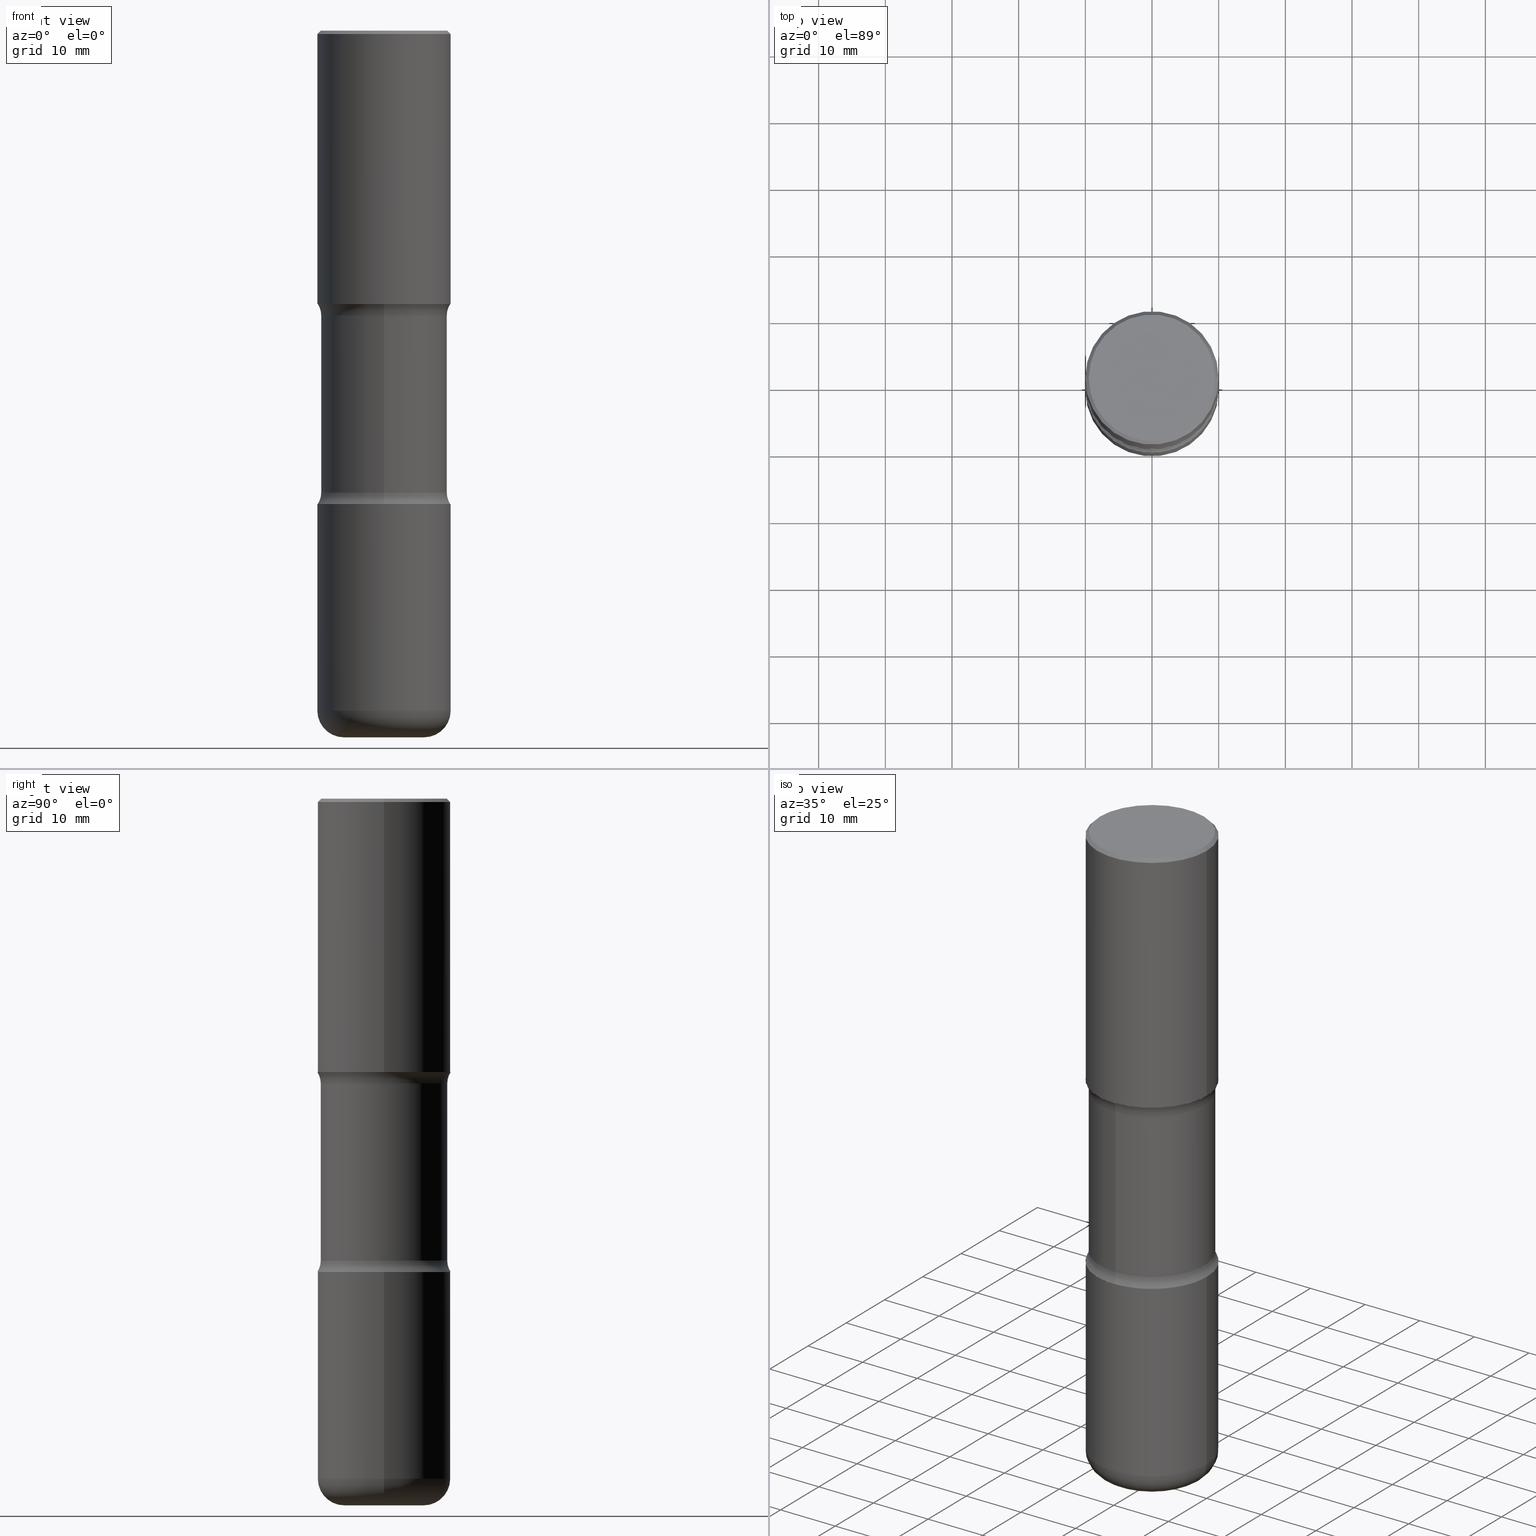
[diagram: canonical four-view strip — front | top / right | iso, engineering-drawing reading convention]
A machine part, canonical four-view strip (front | top / right | iso — engineering-drawing reading convention). The complete STEP part file that produces these views, byte-faithful:
ISO-10303-21;
HEADER;
FILE_DESCRIPTION (( 'STEP AP203' ),
    '1' );
FILE_NAME ('44996.STEP',
    '2024-03-02T04:27:52',
    ( '' ),
    ( '' ),
    'SwSTEP 2.0',
    'SolidWorks 2023',
    '' );
FILE_SCHEMA (( 'CONFIG_CONTROL_DESIGN' ));
ENDSEC;

DATA;
#1 = PRODUCT ( '44996', '44996', '', ( #303 ) ) ;
#2 = EDGE_CURVE ( 'NONE', #428, #338, #4, .T. ) ;
#3 = FACE_OUTER_BOUND ( 'NONE', #139, .T. ) ;
#4 = CIRCLE ( 'NONE', #170, 0.3937000000000004385 ) ;
#5 = CONICAL_SURFACE ( 'NONE', #71, 0.3937000000000002164, 0.7853981633974460586 ) ;
#6 = PRODUCT_DEFINITION_FORMATION_WITH_SPECIFIED_SOURCE ( 'ANY', '', #1, .NOT_KNOWN. ) ;
#7 = DIRECTION ( 'NONE',  ( -1.000000000000000000, 7.105427357601006592E-15, 0.000000000000000000 ) ) ;
#8 = DIRECTION ( 'NONE',  ( 6.982962677686265922E-15, 1.000000000000000000, -3.417138595909611452E-15 ) ) ;
#9 = DIRECTION ( 'NONE',  ( 2.497382066111305685E-29, -3.417138595909611452E-15, -1.000000000000000000 ) ) ;
#10 = FACE_OUTER_BOUND ( 'NONE', #396, .T. ) ;
#11 = ORIENTED_EDGE ( 'NONE', *, *, #154, .F. ) ;
#12 = EDGE_CURVE ( 'NONE', #332, #404, #225, .T. ) ;
#13 = DIRECTION ( 'NONE',  ( -2.445468806185136877E-29, 3.491481338843145188E-15, 1.000000000000000000 ) ) ;
#14 = AXIS2_PLACEMENT_3D ( 'NONE', #169, #542, #107 ) ;
#15 = VECTOR ( 'NONE', #447, 39.37007874015748143 ) ;
#16 = ORIENTED_EDGE ( 'NONE', *, *, #151, .F. ) ;
#17 = ADVANCED_FACE ( 'NONE', ( #286 ), #438, .T. ) ;
#18 = FACE_OUTER_BOUND ( 'NONE', #96, .T. ) ;
#19 = ORIENTED_EDGE ( 'NONE', *, *, #43, .F. ) ;
#20 = DIRECTION ( 'NONE',  ( 6.982962677686265922E-15, 1.000000000000000000, -2.775563112689115117E-15 ) ) ;
#21 = VERTEX_POINT ( 'NONE', #527 ) ;
#22 = ORIENTED_EDGE ( 'NONE', *, *, #264, .T. ) ;
#23 = FACE_OUTER_BOUND ( 'NONE', #343, .T. ) ;
#24 = VERTEX_POINT ( 'NONE', #411 ) ;
#25 = ORIENTED_EDGE ( 'NONE', *, *, #270, .F. ) ;
#26 = DIRECTION ( 'NONE',  ( 1.000000000000000000, -6.982962677686262766E-15, 0.000000000000000000 ) ) ;
#27 = PERSON_AND_ORGANIZATION_ROLE ( 'creator' ) ;
#28 = DIRECTION ( 'NONE',  ( -2.445468806185136597E-29, 3.491481338843145583E-15, 1.000000000000000000 ) ) ;
#29 = FACE_OUTER_BOUND ( 'NONE', #420, .T. ) ;
#30 = PERSON_AND_ORGANIZATION_ROLE ( 'design_supplier' ) ;
#31 = DIRECTION ( 'NONE',  ( 6.982962677686265922E-15, 1.000000000000000000, -3.469453890861391629E-15 ) ) ;
#32 = DIRECTION ( 'NONE',  ( -2.445468806185136877E-29, 3.491481338843145188E-15, 1.000000000000000000 ) ) ;
#33 = ADVANCED_FACE ( 'NONE', ( #131 ), #219, .T. ) ;
#34 = AXIS2_PLACEMENT_3D ( 'NONE', #203, #159, #165 ) ;
#35 = AXIS2_PLACEMENT_3D ( 'NONE', #195, #383, #301 ) ;
#36 = APPROVAL_PERSON_ORGANIZATION ( #452, #156, #254 ) ;
#37 = CARTESIAN_POINT ( 'NONE',  ( 3.947231200063429727E-29, -5.635600029026721857E-15, -1.614100000000000090 ) ) ;
#38 = ORIENTED_EDGE ( 'NONE', *, *, #270, .T. ) ;
#39 = LINE ( 'NONE', #172, #390 ) ;
#40 = EDGE_CURVE ( 'NONE', #484, #21, #210, .T. ) ;
#41 = AXIS2_PLACEMENT_3D ( 'NONE', #281, #233, #397 ) ;
#42 = LOCAL_TIME ( 23, 27, 52.00000000000000000, #202 ) ;
#43 = EDGE_CURVE ( 'NONE', #237, #201, #48, .T. ) ;
#44 = ORIENTED_EDGE ( 'NONE', *, *, #128, .F. ) ;
#45 = PLANE ( 'NONE',  #277 ) ;
#46 = EDGE_CURVE ( 'NONE', #201, #237, #526, .T. ) ;
#47 = DIRECTION ( 'NONE',  ( -1.000000000000000000, 6.982962677686265922E-15, -4.883557194083112340E-29 ) ) ;
#48 = CIRCLE ( 'NONE', #365, 0.3734999999999999987 ) ;
#49 = AXIS2_PLACEMENT_3D ( 'NONE', #504, #333, #454 ) ;
#50 = DIRECTION ( 'NONE',  ( 6.982962677686265922E-15, 1.000000000000000000, -2.925673888797068924E-15 ) ) ;
#51 = CARTESIAN_POINT ( 'NONE',  ( 2.608136560115886471E-15, 0.3734999999999905063, -2.727068069159902741 ) ) ;
#52 = CARTESIAN_POINT ( 'NONE',  ( 3.947231200063429727E-29, -5.635600029026721857E-15, -1.614100000000000090 ) ) ;
#53 = EDGE_CURVE ( 'NONE', #480, #237, #374, .T. ) ;
#54 = DIRECTION ( 'NONE',  ( -2.445468806185136597E-29, 3.491481338843145583E-15, 1.000000000000000000 ) ) ;
#55 = CARTESIAN_POINT ( 'NONE',  ( 6.835574407048695164E-29, -9.759388638334361670E-15, -2.795200000000000351 ) ) ;
#56 = CC_DESIGN_PERSON_AND_ORGANIZATION_ASSIGNMENT ( #414, #27, ( #6 ) ) ;
#57 = ORIENTED_EDGE ( 'NONE', *, *, #65, .F. ) ;
#58 = CYLINDRICAL_SURFACE ( 'NONE', #112, 0.3937000000000003830 ) ;
#59 = ORIENTED_EDGE ( 'NONE', *, *, #53, .T. ) ;
#60 = AXIS2_PLACEMENT_3D ( 'NONE', #287, #163, #114 ) ;
#61 = ORIENTED_EDGE ( 'NONE', *, *, #43, .T. ) ;
#62 = ORIENTED_EDGE ( 'NONE', *, *, #221, .F. ) ;
#63 = ADVANCED_FACE ( 'NONE', ( #279 ), #434, .F. ) ;
#64 = CARTESIAN_POINT ( 'NONE',  ( 6.665422944839096374E-29, -9.526572387846816848E-15, -2.727068069159901409 ) ) ;
#65 = EDGE_CURVE ( 'NONE', #500, #536, #186, .T. ) ;
#66 = DIRECTION ( 'NONE',  ( -2.445468806185136597E-29, 3.491481338843145583E-15, 1.000000000000000000 ) ) ;
#67 = APPROVAL_DATE_TIME ( #302, #156 ) ;
#68 = ORIENTED_EDGE ( 'NONE', *, *, #539, .T. ) ;
#69 = ORIENTED_EDGE ( 'NONE', *, *, #547, .F. ) ;
#70 = AXIS2_PLACEMENT_3D ( 'NONE', #127, #560, #214 ) ;
#71 = AXIS2_PLACEMENT_3D ( 'NONE', #120, #545, #415 ) ;
#72 = CARTESIAN_POINT ( 'NONE',  ( 4.890937612370289799E-31, -6.982962677686315028E-17, -0.02000000000000006981 ) ) ;
#73 = LINE ( 'NONE', #253, #15 ) ;
#74 = APPROVAL_ROLE ( '' ) ;
#75 = DIRECTION ( 'NONE',  ( 1.000000000000000000, -6.982962677686265922E-15, 4.876176775795935793E-29 ) ) ;
#76 = APPROVAL_ROLE ( '' ) ;
#77 = DIRECTION ( 'NONE',  ( 6.982962677686265922E-15, 1.000000000000000000, -3.657092360996335267E-15 ) ) ;
#78 = DIRECTION ( 'NONE',  ( 2.497382066111305685E-29, -3.417138595909611452E-15, -1.000000000000000000 ) ) ;
#79 = DIRECTION ( 'NONE',  ( 1.000000000000000000, -6.982962677686266711E-15, 0.000000000000000000 ) ) ;
#80 = AXIS2_PLACEMENT_3D ( 'NONE', #364, #245, #50 ) ;
#81 = AXIS2_PLACEMENT_3D ( 'NONE', #501, #212, #206 ) ;
#82 = CARTESIAN_POINT ( 'NONE',  ( -2.631687031945121663E-15, -0.3735000000000060494, -1.682231930840098144 ) ) ;
#83 = ORIENTED_EDGE ( 'NONE', *, *, #370, .T. ) ;
#84 = TOROIDAL_SURFACE ( 'NONE', #176, 0.4985000000000002762, 0.1250000000000001665 ) ;
#85 = CIRCLE ( 'NONE', #416, 0.3937000000000002164 ) ;
#86 = ORIENTED_EDGE ( 'NONE', *, *, #209, .F. ) ;
#87 = CARTESIAN_POINT ( 'NONE',  ( 0.3937000000000002164, -1.250858104453944804E-14, -2.795200000000000351 ) ) ;
#88 = CARTESIAN_POINT ( 'NONE',  ( -3.131554243005659264E-46, 4.471029511141341874E-32, 1.280553747030123384E-17 ) ) ;
#89 = DIRECTION ( 'NONE',  ( 6.982962677686265922E-15, 1.000000000000000000, -3.657092360996335267E-15 ) ) ;
#90 = AXIS2_PLACEMENT_3D ( 'NONE', #369, #481, #529 ) ;
#91 = CARTESIAN_POINT ( 'NONE',  ( -2.562396002167563676E-15, -0.3735000000000144871, -4.173199999999998688 ) ) ;
#92 = CYLINDRICAL_SURFACE ( 'NONE', #41, 0.3937000000000003830 ) ;
#93 = EDGE_LOOP ( 'NONE', ( #16, #217, #394, #44 ) ) ;
#94 = DIRECTION ( 'NONE',  ( -1.000000000000000000, 6.982962677686265922E-15, -4.883557194083112340E-29 ) ) ;
#95 = CARTESIAN_POINT ( 'NONE',  ( 6.621268914021895076E-29, -9.589803473068410880E-15, -2.727068069159901409 ) ) ;
#96 = EDGE_LOOP ( 'NONE', ( #326, #100 ) ) ;
#97 = EDGE_CURVE ( 'NONE', #536, #500, #502, .T. ) ;
#98 = ORIENTED_EDGE ( 'NONE', *, *, #213, .T. ) ;
#99 = AXIS2_PLACEMENT_3D ( 'NONE', #320, #54, #528 ) ;
#100 = ORIENTED_EDGE ( 'NONE', *, *, #455, .F. ) ;
#101 = ORGANIZATION ( 'UNSPECIFIED', 'UNSPECIFIED', '' ) ;
#102 = ADVANCED_BREP_SHAPE_REPRESENTATION ( '44996', ( #552, #557, #379, #289 ), #251 ) ;
#103 = ORIENTED_EDGE ( 'NONE', *, *, #264, .F. ) ;
#104 = DATE_TIME_ROLE ( 'classification_date' ) ;
#105 = PLANE ( 'NONE',  #268 ) ;
#106 = VERTEX_POINT ( 'NONE', #387 ) ;
#107 = DIRECTION ( 'NONE',  ( 1.000000000000000000, -6.982962677686269077E-15, 0.000000000000000000 ) ) ;
#108 = CARTESIAN_POINT ( 'NONE',  ( 2.609533152651358987E-15, 0.3737000000000002542, -1.298363807590533784E-15 ) ) ;
#109 = PERSON_AND_ORGANIZATION_ROLE ( 'classification_officer' ) ;
#110 = AXIS2_PLACEMENT_3D ( 'NONE', #64, #413, #475 ) ;
#111 = EDGE_CURVE ( 'NONE', #360, #355, #376, .T. ) ;
#112 = AXIS2_PLACEMENT_3D ( 'NONE', #138, #285, #444 ) ;
#113 = APPLICATION_PROTOCOL_DEFINITION ( 'international standard', 'config_control_design', 1994, #124 ) ;
#114 = DIRECTION ( 'NONE',  ( 6.860497997771532351E-15, 1.000000000000000000, 0.000000000000000000 ) ) ;
#115 = ADVANCED_FACE ( 'NONE', ( #554 ), #84, .F. ) ;
#116 = APPLICATION_PROTOCOL_DEFINITION ( 'international standard', 'config_control_design', 1994, #164 ) ;
#117 = LENGTH_MEASURE_WITH_UNIT ( LENGTH_MEASURE( 0.02539999999999999897 ), #344 );
#118 = ORIENTED_EDGE ( 'NONE', *, *, #126, .T. ) ;
#119 = CC_DESIGN_PERSON_AND_ORGANIZATION_ASSIGNMENT ( #426, #465, ( #1 ) ) ;
#120 = CARTESIAN_POINT ( 'NONE',  ( 4.890937612370289799E-31, -6.982962677686315028E-17, -0.02000000000000006981 ) ) ;
#121 = AXIS2_PLACEMENT_3D ( 'NONE', #230, #180, #7 ) ;
#122 = CIRCLE ( 'NONE', #423, 0.1250000000000001665 ) ;
#123 = ORIENTED_EDGE ( 'NONE', *, *, #189, .T. ) ;
#124 = APPLICATION_CONTEXT ( 'configuration controlled 3d designs of mechanical parts and assemblies' ) ;
#125 = AXIS2_PLACEMENT_3D ( 'NONE', #400, #406, #317 ) ;
#126 = EDGE_CURVE ( 'NONE', #355, #360, #337, .T. ) ;
#127 = CARTESIAN_POINT ( 'NONE',  ( -3.131554243005659264E-46, 4.471029511141341874E-32, 1.280553747030123384E-17 ) ) ;
#128 = EDGE_CURVE ( 'NONE', #332, #555, #393, .T. ) ;
#129 = CYLINDRICAL_SURFACE ( 'NONE', #90, 0.3937000000000003830 ) ;
#130 = DIRECTION ( 'NONE',  ( 2.497382066111305685E-29, -3.417138595909611452E-15, -1.000000000000000000 ) ) ;
#131 = FACE_OUTER_BOUND ( 'NONE', #135, .T. ) ;
#132 = CARTESIAN_POINT ( 'NONE',  ( 9.820269084997649591E-29, -1.402074161239241518E-14, -4.015699999999998937 ) ) ;
#133 = FACE_OUTER_BOUND ( 'NONE', #373, .T. ) ;
#134 = CIRCLE ( 'NONE', #457, 0.3735000000000001097 ) ;
#135 = EDGE_LOOP ( 'NONE', ( #273, #241, #269, #493 ) ) ;
#136 = CARTESIAN_POINT ( 'NONE',  ( 9.820269084997649591E-29, -1.402074161239241518E-14, -4.015699999999998937 ) ) ;
#137 = ORIENTED_EDGE ( 'NONE', *, *, #65, .T. ) ;
#138 = CARTESIAN_POINT ( 'NONE',  ( 0.000000000000000000, 0.000000000000000000, 0.000000000000000000 ) ) ;
#139 = EDGE_LOOP ( 'NONE', ( #11, #118, #83, #531 ) ) ;
#140 = CARTESIAN_POINT ( 'NONE',  ( 0.3937000000000004385, -8.384792435231807440E-15, -1.614100000000000090 ) ) ;
#141 = CARTESIAN_POINT ( 'NONE',  ( 4.126794496352893348E-29, -1.363851564462866640E-14, -2.795199999999999907 ) ) ;
#142 = CARTESIAN_POINT ( 'NONE',  ( 6.665422944839096374E-29, -9.526572387846816848E-15, -2.727068069159901409 ) ) ;
#143 = ORIENTED_EDGE ( 'NONE', *, *, #384, .T. ) ;
#144 = APPROVAL_DATE_TIME ( #198, #204 ) ;
#145 = CIRCLE ( 'NONE', #81, 0.3937000000000002164 ) ;
#146 = EDGE_LOOP ( 'NONE', ( #451, #324 ) ) ;
#147 = CARTESIAN_POINT ( 'NONE',  ( 1.694629422539984415E-28, -4.917349290610190469E-15, -4.173200000000000465 ) ) ;
#148 = EDGE_LOOP ( 'NONE', ( #498, #351, #181, #349 ) ) ;
#149 = SECURITY_CLASSIFICATION_LEVEL ( 'unclassified' ) ;
#150 = CARTESIAN_POINT ( 'NONE',  ( 0.3937000000000007716, -1.676993401859750313E-14, -4.015699999999998937 ) ) ;
#151 = EDGE_CURVE ( 'NONE', #404, #332, #408, .T. ) ;
#152 = EDGE_LOOP ( 'NONE', ( #450, #69, #242, #137 ) ) ;
#153 = APPROVAL_STATUS ( 'not_yet_approved' ) ;
#154 = EDGE_CURVE ( 'NONE', #355, #24, #39, .T. ) ;
#155 = CARTESIAN_POINT ( 'NONE',  ( 1.020543042197181255E-28, -1.457064992326021168E-14, -4.173199999999999577 ) ) ;
#156 = APPROVAL ( #250, 'UNSPECIFIED' ) ;
#157 = COORDINATED_UNIVERSAL_TIME_OFFSET ( 5, 0, .BEHIND. ) ;
#158 = CLOSED_SHELL ( 'NONE', ( #307, #432, #419, #402, #284, #392 ) ) ;
#159 = DIRECTION ( 'NONE',  ( 2.497382066111305685E-29, -3.417138595909611452E-15, -1.000000000000000000 ) ) ;
#160 = CIRCLE ( 'NONE', #220, 0.1249999999999999584 ) ;
#161 = PLANE ( 'NONE',  #513 ) ;
#162 = CC_DESIGN_APPROVAL ( #204, ( #6 ) ) ;
#163 = DIRECTION ( 'NONE',  ( 1.000000000000000000, -6.860497997771530774E-15, 4.841709315645876741E-29 ) ) ;
#164 = APPLICATION_CONTEXT ( 'configuration controlled 3d designs of mechanical parts and assemblies' ) ;
#165 = DIRECTION ( 'NONE',  ( 6.982962677686265922E-15, 1.000000000000000000, -3.469453890861391629E-15 ) ) ;
#166 = EDGE_CURVE ( 'NONE', #404, #381, #350, .T. ) ;
#167 = CARTESIAN_POINT ( 'NONE',  ( 0.3937000000000002164, -2.770807688499516917E-15, -0.02000000000000006981 ) ) ;
#168 = CC_DESIGN_DATE_AND_TIME_ASSIGNMENT ( #488, #104, ( #514 ) ) ;
#169 = CARTESIAN_POINT ( 'NONE',  ( 9.820269084997649591E-29, -1.402074161239241518E-14, -4.015699999999998937 ) ) ;
#170 = AXIS2_PLACEMENT_3D ( 'NONE', #52, #184, #234 ) ;
#171 = CIRCLE ( 'NONE', #348, 0.3735000000000001097 ) ;
#172 = CARTESIAN_POINT ( 'NONE',  ( -0.3937000000000003830, 2.797406750687517153E-15, -1.936584745033358137E-29 ) ) ;
#173 = EDGE_CURVE ( 'NONE', #21, #360, #486, .T. ) ;
#174 = CC_DESIGN_PERSON_AND_ORGANIZATION_ASSIGNMENT ( #459, #30, ( #6 ) ) ;
#175 = ORIENTED_EDGE ( 'NONE', *, *, #306, .T. ) ;
#176 = AXIS2_PLACEMENT_3D ( 'NONE', #389, #218, #512 ) ;
#177 = CIRCLE ( 'NONE', #487, 0.2362000000000006039 ) ;
#178 = CARTESIAN_POINT ( 'NONE',  ( 0.3937000000000003830, -2.749192406205085978E-15, 1.919750796630861853E-29 ) ) ;
#179 = EDGE_CURVE ( 'NONE', #484, #355, #276, .T. ) ;
#180 = DIRECTION ( 'NONE',  ( 7.105427357601001859E-15, 1.000000000000000000, -3.491481338843145583E-15 ) ) ;
#181 = ORIENTED_EDGE ( 'NONE', *, *, #492, .F. ) ;
#182 = FACE_OUTER_BOUND ( 'NONE', #148, .T. ) ;
#183 = DIRECTION ( 'NONE',  ( -6.982962677686265922E-15, -1.000000000000000000, 3.417138595909611452E-15 ) ) ;
#184 = DIRECTION ( 'NONE',  ( -2.445468806185136597E-29, 3.491481338843145583E-15, 1.000000000000000000 ) ) ;
#185 = CARTESIAN_POINT ( 'NONE',  ( 0.3737000000000002542, -2.667287895133369937E-15, 1.280553747031968579E-17 ) ) ;
#186 = CIRCLE ( 'NONE', #34, 0.3937000000000004940 ) ;
#187 = FACE_OUTER_BOUND ( 'NONE', #508, .T. ) ;
#188 = CIRCLE ( 'NONE', #60, 0.1250000000000001665 ) ;
#189 = EDGE_CURVE ( 'NONE', #428, #381, #278, .T. ) ;
#190 = APPROVAL_PERSON_ORGANIZATION ( #546, #412, #74 ) ;
#191 = CARTESIAN_POINT ( 'NONE',  ( 1.020543042197181255E-28, -1.457064992326021168E-14, -4.173199999999999577 ) ) ;
#192 = EDGE_LOOP ( 'NONE', ( #466, #22, #175, #19 ) ) ;
#193 = ORIENTED_EDGE ( 'NONE', *, *, #111, .F. ) ;
#194 = ORIENTED_EDGE ( 'NONE', *, *, #111, .T. ) ;
#195 = CARTESIAN_POINT ( 'NONE',  ( 6.621268914021895076E-29, -9.589803473068410880E-15, -2.727068069159901409 ) ) ;
#196 = DIRECTION ( 'NONE',  ( 1.000000000000000000, -6.982962677686262766E-15, 0.000000000000000000 ) ) ;
#197 = CYLINDRICAL_SURFACE ( 'NONE', #316, 0.3734999999999999987 ) ;
#198 = DATE_AND_TIME ( #506, #519 ) ;
#199 = TOROIDAL_SURFACE ( 'NONE', #378, 0.2362000000000005762, 0.1575000000000003619 ) ;
#200 = DIRECTION ( 'NONE',  ( 2.438088387897960049E-29, -3.491481338843145188E-15, -1.000000000000000000 ) ) ;
#201 = VERTEX_POINT ( 'NONE', #51 ) ;
#202 = COORDINATED_UNIVERSAL_TIME_OFFSET ( 5, 0, .BEHIND. ) ;
#203 = CARTESIAN_POINT ( 'NONE',  ( 3.885916448764630888E-29, -5.723406242705518712E-15, -1.614100000000000090 ) ) ;
#204 = APPROVAL ( #153, 'UNSPECIFIED' ) ;
#205 = CARTESIAN_POINT ( 'NONE',  ( -0.3937000000000007716, -1.122333486170489645E-14, -4.015699999999998937 ) ) ;
#206 = DIRECTION ( 'NONE',  ( 1.000000000000000000, -6.982962677686269866E-15, 0.000000000000000000 ) ) ;
#207 = PLANE ( 'NONE',  #49 ) ;
#208 = COORDINATED_UNIVERSAL_TIME_OFFSET ( 5, 0, .BEHIND. ) ;
#209 = EDGE_CURVE ( 'NONE', #453, #201, #160, .T. ) ;
#210 = CIRCLE ( 'NONE', #517, 0.2362000000000006039 ) ;
#211 = VECTOR ( 'NONE', #430, 39.37007874015748143 ) ;
#212 = DIRECTION ( 'NONE',  ( -2.445468806185136597E-29, 3.491481338843145583E-15, 1.000000000000000000 ) ) ;
#213 = EDGE_CURVE ( 'NONE', #106, #453, #226, .T. ) ;
#214 = DIRECTION ( 'NONE',  ( 1.000000000000000000, -6.982962677686266711E-15, 4.876212485538972316E-29 ) ) ;
#215 = CARTESIAN_POINT ( 'NONE',  ( -0.3937000000000003830, 2.797406750687517153E-15, -1.936584745033358137E-29 ) ) ;
#216 = ORIENTED_EDGE ( 'NONE', *, *, #126, .F. ) ;
#217 = ORIENTED_EDGE ( 'NONE', *, *, #166, .T. ) ;
#218 = DIRECTION ( 'NONE',  ( 2.497382066111305685E-29, -3.417138595909611452E-15, -1.000000000000000000 ) ) ;
#219 = CONICAL_SURFACE ( 'NONE', #236, 0.3937000000000002164, 0.7853981633974460586 ) ;
#220 = AXIS2_PLACEMENT_3D ( 'NONE', #474, #47, #359 ) ;
#221 = EDGE_CURVE ( 'NONE', #352, #24, #446, .T. ) ;
#222 = DIRECTION ( 'NONE',  ( 1.000000000000000000, -6.982962677686269077E-15, 0.000000000000000000 ) ) ;
#223 = EDGE_LOOP ( 'NONE', ( #443, #68 ) ) ;
#224 = DIRECTION ( 'NONE',  ( 2.497382066111305685E-29, -3.417138595909611452E-15, -1.000000000000000000 ) ) ;
#225 = CIRCLE ( 'NONE', #304, 0.3737000000000002542 ) ;
#226 = CIRCLE ( 'NONE', #538, 0.3937000000000002164 ) ;
#227 = PRODUCT_RELATED_PRODUCT_CATEGORY ( 'detail', '', ( #1 ) ) ;
#228 = DIRECTION ( 'NONE',  ( 6.982962677686265922E-15, 1.000000000000000000, -3.417138595909611452E-15 ) ) ;
#229 = CARTESIAN_POINT ( 'NONE',  ( 3.947231200063429727E-29, -5.635600029026721857E-15, -1.614100000000000090 ) ) ;
#230 = CARTESIAN_POINT ( 'NONE',  ( -0.2362000000000005762, -1.234243967052705563E-14, -4.015699999999998937 ) ) ;
#231 = ORIENTED_EDGE ( 'NONE', *, *, #154, .T. ) ;
#232 = DIRECTION ( 'NONE',  ( 1.000000000000000000, -6.982962677686266711E-15, 4.883557194083112340E-29 ) ) ;
#233 = DIRECTION ( 'NONE',  ( -2.445468806185136597E-29, 3.491481338843145583E-15, 1.000000000000000000 ) ) ;
#234 = DIRECTION ( 'NONE',  ( 1.000000000000000000, -6.982962677686265922E-15, 0.000000000000000000 ) ) ;
#235 = DIRECTION ( 'NONE',  ( -6.982962677686265133E-15, -1.000000000000000000, 0.000000000000000000 ) ) ;
#236 = AXIS2_PLACEMENT_3D ( 'NONE', #319, #371, #314 ) ;
#237 = VERTEX_POINT ( 'NONE', #440 ) ;
#238 = CARTESIAN_POINT ( 'NONE',  ( -0.3737000000000002542, 2.644447966039791030E-15, 1.280553747028286201E-17 ) ) ;
#239 = UNCERTAINTY_MEASURE_WITH_UNIT (LENGTH_MEASURE( 1.000000000000000082E-05 ), #543, 'distance_accuracy_value', 'NONE');
#240 = CIRCLE ( 'NONE', #125, 0.1249999999999999584 ) ;
#241 = ORIENTED_EDGE ( 'NONE', *, *, #12, .F. ) ;
#242 = ORIENTED_EDGE ( 'NONE', *, *, #464, .T. ) ;
#243 = CC_DESIGN_PERSON_AND_ORGANIZATION_ASSIGNMENT ( #494, #109, ( #514 ) ) ;
#244 = FACE_OUTER_BOUND ( 'NONE', #223, .T. ) ;
#245 = DIRECTION ( 'NONE',  ( 2.497382066111305685E-29, -3.417138595909611452E-15, -1.000000000000000000 ) ) ;
#246 = ORIENTED_EDGE ( 'NONE', *, *, #40, .F. ) ;
#247 = PERSON_AND_ORGANIZATION ( #380, #101 ) ;
#248 = CARTESIAN_POINT ( 'NONE',  ( 0.000000000000000000, 0.000000000000000000, 0.000000000000000000 ) ) ;
#249 = EDGE_CURVE ( 'NONE', #453, #106, #435, .T. ) ;
#250 = APPROVAL_STATUS ( 'not_yet_approved' ) ;
#251 =( GEOMETRIC_REPRESENTATION_CONTEXT ( 3 ) GLOBAL_UNCERTAINTY_ASSIGNED_CONTEXT ( ( #239 ) ) GLOBAL_UNIT_ASSIGNED_CONTEXT ( ( #543, #382, #496 ) ) REPRESENTATION_CONTEXT ( 'NONE', 'WORKASPACE' ) );
#252 = CARTESIAN_POINT ( 'NONE',  ( 4.056067910974230799E-29, -5.956222493193065901E-15, -1.682231930840099476 ) ) ;
#253 = CARTESIAN_POINT ( 'NONE',  ( 0.3937000000000003830, -2.749192406205085978E-15, 1.919750796630861853E-29 ) ) ;
#254 = APPROVAL_ROLE ( '' ) ;
#255 = FACE_OUTER_BOUND ( 'NONE', #93, .T. ) ;
#256 = CARTESIAN_POINT ( 'NONE',  ( 0.3937000000000002164, -2.770807688499516917E-15, -0.02000000000000006981 ) ) ;
#257 = CALENDAR_DATE ( 2024, 1, 3 ) ;
#258 = PLANE ( 'NONE',  #468 ) ;
#259 = AXIS2_PLACEMENT_3D ( 'NONE', #467, #321, #323 ) ;
#260 = LOCAL_TIME ( 23, 27, 52.00000000000000000, #208 ) ;
#261 = ORIENTED_EDGE ( 'NONE', *, *, #97, .F. ) ;
#262 = ORIENTED_EDGE ( 'NONE', *, *, #209, .T. ) ;
#263 = ADVANCED_FACE ( 'NONE', ( #476 ), #471, .F. ) ;
#264 = EDGE_CURVE ( 'NONE', #480, #377, #134, .T. ) ;
#265 = DIRECTION ( 'NONE',  ( -2.445468806185136597E-29, 3.491481338843145583E-15, 1.000000000000000000 ) ) ;
#266 = AXIS2_PLACEMENT_3D ( 'NONE', #460, #78, #31 ) ;
#267 = ORIENTED_EDGE ( 'NONE', *, *, #530, .F. ) ;
#268 = AXIS2_PLACEMENT_3D ( 'NONE', #147, #372, #442 ) ;
#269 = ORIENTED_EDGE ( 'NONE', *, *, #128, .T. ) ;
#270 = EDGE_CURVE ( 'NONE', #106, #237, #240, .T. ) ;
#271 = CARTESIAN_POINT ( 'NONE',  ( 6.835574407048695164E-29, -9.759388638334361670E-15, -2.795200000000000351 ) ) ;
#272 = CC_DESIGN_DATE_AND_TIME_ASSIGNMENT ( #535, #329, ( #497 ) ) ;
#273 = ORIENTED_EDGE ( 'NONE', *, *, #166, .F. ) ;
#274 = CARTESIAN_POINT ( 'NONE',  ( 4.018463748733707681E-29, -6.010073793817493129E-15, -1.682231930840099476 ) ) ;
#275 = DIRECTION ( 'NONE',  ( 2.497382066111305685E-29, -3.417138595909611452E-15, -1.000000000000000000 ) ) ;
#276 = CIRCLE ( 'NONE', #121, 0.1575000000000003342 ) ;
#277 = AXIS2_PLACEMENT_3D ( 'NONE', #141, #483, #183 ) ;
#278 = LINE ( 'NONE', #178, #433 ) ;
#279 = FACE_OUTER_BOUND ( 'NONE', #437, .T. ) ;
#280 = FACE_OUTER_BOUND ( 'NONE', #295, .T. ) ;
#281 = CARTESIAN_POINT ( 'NONE',  ( 0.000000000000000000, 0.000000000000000000, 0.000000000000000000 ) ) ;
#282 = DESIGN_CONTEXT ( 'detailed design', #164, 'design' ) ;
#283 = ORIENTED_EDGE ( 'NONE', *, *, #179, .T. ) ;
#284 = ADVANCED_FACE ( 'NONE', ( #3 ), #129, .T. ) ;
#285 = DIRECTION ( 'NONE',  ( -2.445468806185136597E-29, 3.491481338843145583E-15, 1.000000000000000000 ) ) ;
#286 = FACE_OUTER_BOUND ( 'NONE', #192, .T. ) ;
#287 = CARTESIAN_POINT ( 'NONE',  ( -3.419958251889069808E-15, -0.4985000000000063269, -1.682231930840097922 ) ) ;
#288 = AXIS2_PLACEMENT_3D ( 'NONE', #458, #66, #461 ) ;
#289 = AXIS2_PLACEMENT_3D ( 'NONE', #456, #510, #305 ) ;
#290 = CALENDAR_DATE ( 2024, 1, 3 ) ;
#291 = ORIENTED_EDGE ( 'NONE', *, *, #46, .T. ) ;
#292 = ORIENTED_EDGE ( 'NONE', *, *, #515, .T. ) ;
#293 = ORIENTED_EDGE ( 'NONE', *, *, #213, .F. ) ;
#294 = FACE_OUTER_BOUND ( 'NONE', #345, .T. ) ;
#295 = EDGE_LOOP ( 'NONE', ( #449, #246 ) ) ;
#296 = EDGE_LOOP ( 'NONE', ( #103, #143, #441, #322 ) ) ;
#297 = APPROVAL_STATUS ( 'not_yet_approved' ) ;
#298 = AXIS2_PLACEMENT_3D ( 'NONE', #274, #431, #228 ) ;
#299 = LOCAL_TIME ( 23, 27, 52.00000000000000000, #417 ) ;
#300 = ADVANCED_FACE ( 'NONE', ( #10 ), #45, .F. ) ;
#301 = DIRECTION ( 'NONE',  ( 6.982962677686265922E-15, 1.000000000000000000, -3.417138595909611452E-15 ) ) ;
#302 = DATE_AND_TIME ( #421, #260 ) ;
#303 = MECHANICAL_CONTEXT ( 'NONE', #124, 'mechanical' ) ;
#304 = AXIS2_PLACEMENT_3D ( 'NONE', #88, #407, #523 ) ;
#305 = DIRECTION ( 'NONE',  ( 1.000000000000000000, 0.000000000000000000, 0.000000000000000000 ) ) ;
#306 = EDGE_CURVE ( 'NONE', #377, #201, #525, .T. ) ;
#307 = ADVANCED_FACE ( 'NONE', ( #133 ), #92, .T. ) ;
#308 = ORIENTED_EDGE ( 'NONE', *, *, #455, .T. ) ;
#309 = CARTESIAN_POINT ( 'NONE',  ( 9.820269084997649591E-29, -1.402074161239241518E-14, -4.015699999999998937 ) ) ;
#310 = TOROIDAL_SURFACE ( 'NONE', #503, 0.2362000000000005762, 0.1575000000000003619 ) ;
#311 = ORIENTED_EDGE ( 'NONE', *, *, #179, .F. ) ;
#312 = FACE_OUTER_BOUND ( 'NONE', #152, .T. ) ;
#313 = CARTESIAN_POINT ( 'NONE',  ( 6.835574407048695164E-29, -9.759388638334361670E-15, -2.795200000000000351 ) ) ;
#314 = DIRECTION ( 'NONE',  ( -1.000000000000000000, 6.982962677686266711E-15, 0.000000000000000000 ) ) ;
#315 = VECTOR ( 'NONE', #353, 39.37007874015748143 ) ;
#316 = AXIS2_PLACEMENT_3D ( 'NONE', #439, #9, #375 ) ;
#317 = DIRECTION ( 'NONE',  ( 6.860497997771532351E-15, 1.000000000000000000, 0.000000000000000000 ) ) ;
#318 = ADVANCED_FACE ( 'NONE', ( #187 ), #58, .T. ) ;
#319 = CARTESIAN_POINT ( 'NONE',  ( 4.890937612370289799E-31, -6.982962677686315028E-17, -0.02000000000000006981 ) ) ;
#320 = CARTESIAN_POINT ( 'NONE',  ( 3.947231200063429727E-29, -5.635600029026721857E-15, -1.614100000000000090 ) ) ;
#321 = DIRECTION ( 'NONE',  ( -6.982962677686266711E-15, -1.000000000000000000, 3.491481338843145583E-15 ) ) ;
#322 = ORIENTED_EDGE ( 'NONE', *, *, #464, .F. ) ;
#323 = DIRECTION ( 'NONE',  ( 1.000000000000000000, -6.982962677686271444E-15, 0.000000000000000000 ) ) ;
#324 = ORIENTED_EDGE ( 'NONE', *, *, #151, .T. ) ;
#325 = FACE_OUTER_BOUND ( 'NONE', #559, .T. ) ;
#326 = ORIENTED_EDGE ( 'NONE', *, *, #2, .F. ) ;
#327 = VECTOR ( 'NONE', #32, 39.37007874015748143 ) ;
#328 = CC_DESIGN_SECURITY_CLASSIFICATION ( #514, ( #6 ) ) ;
#329 = DATE_TIME_ROLE ( 'creation_date' ) ;
#330 = DIRECTION ( 'NONE',  ( 6.982962677686265922E-15, 1.000000000000000000, -2.925673888797068924E-15 ) ) ;
#331 = DIRECTION ( 'NONE',  ( -2.445468806185136597E-29, 3.491481338843145583E-15, 1.000000000000000000 ) ) ;
#332 = VERTEX_POINT ( 'NONE', #238 ) ;
#333 = DIRECTION ( 'NONE',  ( 2.438088387897960049E-29, -3.491481338843145188E-15, -1.000000000000000000 ) ) ;
#334 = PERSON_AND_ORGANIZATION ( #380, #101 ) ;
#335 = ORIENTED_EDGE ( 'NONE', *, *, #173, .T. ) ;
#336 = COORDINATED_UNIVERSAL_TIME_OFFSET ( 5, 0, .BEHIND. ) ;
#337 = CIRCLE ( 'NONE', #354, 0.3937000000000005495 ) ;
#338 = VERTEX_POINT ( 'NONE', #358 ) ;
#339 = DATE_AND_TIME ( #257, #357 ) ;
#340 = CC_DESIGN_APPROVAL ( #156, ( #497 ) ) ;
#341 = DIRECTION ( 'NONE',  ( -1.000000000000000000, 6.982962677686265922E-15, -4.876176775795935793E-29 ) ) ;
#342 = CC_DESIGN_PERSON_AND_ORGANIZATION_ASSIGNMENT ( #334, #499, ( #497 ) ) ;
#343 = EDGE_LOOP ( 'NONE', ( #25, #445, #262, #291 ) ) ;
#344 =( LENGTH_UNIT ( ) NAMED_UNIT ( * ) SI_UNIT ( $, .METRE. ) );
#345 = EDGE_LOOP ( 'NONE', ( #292, #283, #193, #472 ) ) ;
#346 = VECTOR ( 'NONE', #275, 39.37007874015748143 ) ;
#347 = ADVANCED_FACE ( 'NONE', ( #312 ), #518, .F. ) ;
#348 = AXIS2_PLACEMENT_3D ( 'NONE', #252, #418, #77 ) ;
#349 = ORIENTED_EDGE ( 'NONE', *, *, #189, .F. ) ;
#350 = LINE ( 'NONE', #167, #549 ) ;
#351 = ORIENTED_EDGE ( 'NONE', *, *, #530, .T. ) ;
#352 = VERTEX_POINT ( 'NONE', #87 ) ;
#353 = DIRECTION ( 'NONE',  ( -0.7071067811865459074, 2.468850131082240100E-15, -0.7071067811865491270 ) ) ;
#354 = AXIS2_PLACEMENT_3D ( 'NONE', #309, #265, #222 ) ;
#355 = VERTEX_POINT ( 'NONE', #205 ) ;
#356 = AXIS2_PLACEMENT_3D ( 'NONE', #248, #331, #489 ) ;
#357 = LOCAL_TIME ( 23, 27, 52.00000000000000000, #336 ) ;
#358 = CARTESIAN_POINT ( 'NONE',  ( -0.3937000000000004385, -5.530807721427478371E-17, -1.614100000000000090 ) ) ;
#359 = DIRECTION ( 'NONE',  ( -6.982962677686265133E-15, -1.000000000000000000, 0.000000000000000000 ) ) ;
#360 = VERTEX_POINT ( 'NONE', #150 ) ;
#361 = DIRECTION ( 'NONE',  ( -2.445468806185136597E-29, 3.491481338843145583E-15, 1.000000000000000000 ) ) ;
#362 = EDGE_CURVE ( 'NONE', #555, #381, #427, .T. ) ;
#363 = CARTESIAN_POINT ( 'NONE',  ( 2.608136560115922758E-15, 0.3734999999999855103, -4.173200000000001353 ) ) ;
#364 = CARTESIAN_POINT ( 'NONE',  ( 1.027696689415007474E-28, -1.446820562349780459E-14, -4.173200000000000465 ) ) ;
#365 = AXIS2_PLACEMENT_3D ( 'NONE', #142, #485, #330 ) ;
#366 = DIRECTION ( 'NONE',  ( 1.000000000000000000, -6.982962677686266711E-15, 4.883557194083112340E-29 ) ) ;
#367 = DIRECTION ( 'NONE',  ( 2.497382066111305685E-29, -3.417138595909611452E-15, -1.000000000000000000 ) ) ;
#368 = ORIENTED_EDGE ( 'NONE', *, *, #306, .F. ) ;
#369 = CARTESIAN_POINT ( 'NONE',  ( 0.000000000000000000, 0.000000000000000000, 0.000000000000000000 ) ) ;
#370 = EDGE_CURVE ( 'NONE', #360, #352, #73, .T. ) ;
#371 = DIRECTION ( 'NONE',  ( 2.445468806185136597E-29, -3.491481338843145583E-15, -1.000000000000000000 ) ) ;
#372 = DIRECTION ( 'NONE',  ( 2.438088387897960049E-29, -3.491481338843145188E-15, -1.000000000000000000 ) ) ;
#373 = EDGE_LOOP ( 'NONE', ( #194, #231, #62, #534 ) ) ;
#374 = LINE ( 'NONE', #91, #346 ) ;
#375 = DIRECTION ( 'NONE',  ( 6.982962677686265922E-15, 1.000000000000000000, -2.925673888797068924E-15 ) ) ;
#376 = CIRCLE ( 'NONE', #14, 0.3937000000000005495 ) ;
#377 = VERTEX_POINT ( 'NONE', #491 ) ;
#378 = AXIS2_PLACEMENT_3D ( 'NONE', #132, #405, #366 ) ;
#379 = MANIFOLD_SOLID_BREP ( 'Body-Move/Copy2[4]', #556 ) ;
#380 = PERSON ( 'UNSPECIFIED', 'UNSPECIFIED', 'UNSPECIFIED', ('UNSPECIFIED'), ('UNSPECIFIED'), ('UNSPECIFIED') ) ;
#381 = VERTEX_POINT ( 'NONE', #256 ) ;
#382 =( NAMED_UNIT ( * ) PLANE_ANGLE_UNIT ( ) SI_UNIT ( $, .RADIAN. ) );
#383 = DIRECTION ( 'NONE',  ( 2.497382066111305685E-29, -3.417138595909611452E-15, -1.000000000000000000 ) ) ;
#384 = EDGE_CURVE ( 'NONE', #480, #536, #188, .T. ) ;
#385 = FACE_OUTER_BOUND ( 'NONE', #146, .T. ) ;
#386 = CIRCLE ( 'NONE', #99, 0.3937000000000004385 ) ;
#387 = CARTESIAN_POINT ( 'NONE',  ( -2.700978061722584594E-15, -0.3937000000000099309, -2.795199999999999019 ) ) ;
#388 = CARTESIAN_POINT ( 'NONE',  ( -2.700978061722616937E-15, -0.3937000000000062117, -1.614099999999998758 ) ) ;
#389 = CARTESIAN_POINT ( 'NONE',  ( 4.018463748733707681E-29, -6.010073793817493129E-15, -1.682231930840099476 ) ) ;
#390 = VECTOR ( 'NONE', #395, 39.37007874015748143 ) ;
#391 = AXIS2_PLACEMENT_3D ( 'NONE', #313, #436, #532 ) ;
#392 = ADVANCED_FACE ( 'NONE', ( #244 ), #207, .F. ) ;
#393 = LINE ( 'NONE', #551, #315 ) ;
#394 = ORIENTED_EDGE ( 'NONE', *, *, #492, .T. ) ;
#395 = DIRECTION ( 'NONE',  ( -2.445468806185136877E-29, 3.491481338843145188E-15, 1.000000000000000000 ) ) ;
#396 = EDGE_LOOP ( 'NONE', ( #505, #98 ) ) ;
#397 = DIRECTION ( 'NONE',  ( 1.000000000000000000, -6.982962677686266711E-15, 4.876176775795935793E-29 ) ) ;
#398 = TOROIDAL_SURFACE ( 'NONE', #35, 0.4985000000000001097, 0.1249999999999999861 ) ;
#399 = ADVANCED_FACE ( 'NONE', ( #23 ), #398, .F. ) ;
#400 = CARTESIAN_POINT ( 'NONE',  ( -3.419958251889042592E-15, -0.4985000000000096576, -2.727068069159899633 ) ) ;
#401 = DIRECTION ( 'NONE',  ( 2.497382066111305685E-29, -3.417138595909611452E-15, -1.000000000000000000 ) ) ;
#402 = ADVANCED_FACE ( 'NONE', ( #29 ), #310, .T. ) ;
#403 = DIRECTION ( 'NONE',  ( 2.497382066111305685E-29, -3.417138595909611452E-15, -1.000000000000000000 ) ) ;
#404 = VERTEX_POINT ( 'NONE', #185 ) ;
#405 = DIRECTION ( 'NONE',  ( -2.445468806185136597E-29, 3.491481338843145583E-15, 1.000000000000000000 ) ) ;
#406 = DIRECTION ( 'NONE',  ( 1.000000000000000000, -6.860497997771530774E-15, 4.841709315645876741E-29 ) ) ;
#407 = DIRECTION ( 'NONE',  ( -2.445468806185136597E-29, 3.491481338843145583E-15, 1.000000000000000000 ) ) ;
#408 = CIRCLE ( 'NONE', #70, 0.3737000000000002542 ) ;
#409 = AXIS2_PLACEMENT_3D ( 'NONE', #55, #224, #20 ) ;
#410 = CARTESIAN_POINT ( 'NONE',  ( 4.056067910974230799E-29, -5.956222493193065901E-15, -1.682231930840099476 ) ) ;
#411 = CARTESIAN_POINT ( 'NONE',  ( -0.3937000000000002164, -9.092658374675872059E-15, -2.795200000000000351 ) ) ;
#412 = APPROVAL ( #297, 'UNSPECIFIED' ) ;
#413 = DIRECTION ( 'NONE',  ( 2.497382066111305685E-29, -3.417138595909611452E-15, -1.000000000000000000 ) ) ;
#414 = PERSON_AND_ORGANIZATION ( #380, #101 ) ;
#415 = DIRECTION ( 'NONE',  ( -1.000000000000000000, 6.982962677686266711E-15, 0.000000000000000000 ) ) ;
#416 = AXIS2_PLACEMENT_3D ( 'NONE', #72, #28, #79 ) ;
#417 = COORDINATED_UNIVERSAL_TIME_OFFSET ( 5, 0, .BEHIND. ) ;
#418 = DIRECTION ( 'NONE',  ( 2.497382066111305685E-29, -3.417138595909611452E-15, -1.000000000000000000 ) ) ;
#419 = ADVANCED_FACE ( 'NONE', ( #280 ), #105, .T. ) ;
#420 = EDGE_LOOP ( 'NONE', ( #311, #478, #335, #216 ) ) ;
#421 = CALENDAR_DATE ( 2024, 1, 3 ) ;
#422 = DIRECTION ( 'NONE',  ( -2.445468806185136597E-29, 3.491481338843145583E-15, 1.000000000000000000 ) ) ;
#423 = AXIS2_PLACEMENT_3D ( 'NONE', #479, #94, #235 ) ;
#424 = ADVANCED_FACE ( 'NONE', ( #325 ), #197, .T. ) ;
#425 = CC_DESIGN_APPROVAL ( #412, ( #514 ) ) ;
#426 = PERSON_AND_ORGANIZATION ( #380, #101 ) ;
#427 = CIRCLE ( 'NONE', #288, 0.3937000000000002164 ) ;
#428 = VERTEX_POINT ( 'NONE', #140 ) ;
#429 = ADVANCED_FACE ( 'NONE', ( #182 ), #537, .T. ) ;
#430 = DIRECTION ( 'NONE',  ( 2.497382066111305685E-29, -3.417138595909611452E-15, -1.000000000000000000 ) ) ;
#431 = DIRECTION ( 'NONE',  ( 2.497382066111305685E-29, -3.417138595909611452E-15, -1.000000000000000000 ) ) ;
#432 = ADVANCED_FACE ( 'NONE', ( #294 ), #199, .T. ) ;
#433 = VECTOR ( 'NONE', #13, 39.37007874015748143 ) ;
#434 = PLANE ( 'NONE',  #511 ) ;
#435 = CIRCLE ( 'NONE', #409, 0.3937000000000002164 ) ;
#436 = DIRECTION ( 'NONE',  ( -2.445468806185136597E-29, 3.491481338843145583E-15, 1.000000000000000000 ) ) ;
#437 = EDGE_LOOP ( 'NONE', ( #57, #261 ) ) ;
#438 = CYLINDRICAL_SURFACE ( 'NONE', #80, 0.3734999999999999987 ) ;
#439 = CARTESIAN_POINT ( 'NONE',  ( 1.027696689415007474E-28, -1.446820562349780459E-14, -4.173200000000000465 ) ) ;
#440 = CARTESIAN_POINT ( 'NONE',  ( -2.631687031945092476E-15, -0.3735000000000094911, -2.727068069159900521 ) ) ;
#441 = ORIENTED_EDGE ( 'NONE', *, *, #97, .T. ) ;
#442 = DIRECTION ( 'NONE',  ( -1.000000000000000000, 6.982962677686265922E-15, -4.876176775795935793E-29 ) ) ;
#443 = ORIENTED_EDGE ( 'NONE', *, *, #221, .T. ) ;
#444 = DIRECTION ( 'NONE',  ( 1.000000000000000000, -6.982962677686266711E-15, 4.876176775795935793E-29 ) ) ;
#445 = ORIENTED_EDGE ( 'NONE', *, *, #249, .F. ) ;
#446 = CIRCLE ( 'NONE', #391, 0.3937000000000002164 ) ;
#447 = DIRECTION ( 'NONE',  ( -2.445468806185136877E-29, 3.491481338843145188E-15, 1.000000000000000000 ) ) ;
#448 = CALENDAR_DATE ( 2024, 1, 3 ) ;
#449 = ORIENTED_EDGE ( 'NONE', *, *, #515, .F. ) ;
#450 = ORIENTED_EDGE ( 'NONE', *, *, #384, .F. ) ;
#451 = ORIENTED_EDGE ( 'NONE', *, *, #12, .T. ) ;
#452 = PERSON_AND_ORGANIZATION ( #380, #101 ) ;
#453 = VERTEX_POINT ( 'NONE', #524 ) ;
#454 = DIRECTION ( 'NONE',  ( -1.000000000000000000, 6.982962677686265922E-15, -4.876176775795935793E-29 ) ) ;
#455 = EDGE_CURVE ( 'NONE', #338, #428, #386, .T. ) ;
#456 = CARTESIAN_POINT ( 'NONE',  ( 0.000000000000000000, 0.000000000000000000, 0.000000000000000000 ) ) ;
#457 = AXIS2_PLACEMENT_3D ( 'NONE', #410, #367, #89 ) ;
#458 = CARTESIAN_POINT ( 'NONE',  ( 4.890937612370289799E-31, -6.982962677686315028E-17, -0.02000000000000006981 ) ) ;
#459 = PERSON_AND_ORGANIZATION ( #380, #101 ) ;
#460 = CARTESIAN_POINT ( 'NONE',  ( 3.885916448764630888E-29, -5.723406242705518712E-15, -1.614100000000000090 ) ) ;
#461 = DIRECTION ( 'NONE',  ( 1.000000000000000000, -6.982962677686266711E-15, 0.000000000000000000 ) ) ;
#462 = APPROVAL_DATE_TIME ( #339, #412 ) ;
#463 = DIRECTION ( 'NONE',  ( -2.438088387897960049E-29, 3.491481338843145188E-15, 1.000000000000000000 ) ) ;
#464 = EDGE_CURVE ( 'NONE', #377, #500, #122, .T. ) ;
#465 = PERSON_AND_ORGANIZATION_ROLE ( 'design_owner' ) ;
#466 = ORIENTED_EDGE ( 'NONE', *, *, #53, .F. ) ;
#467 = CARTESIAN_POINT ( 'NONE',  ( 0.2362000000000005762, -1.567011739686191643E-14, -4.015699999999998937 ) ) ;
#468 = AXIS2_PLACEMENT_3D ( 'NONE', #108, #200, #341 ) ;
#469 = CARTESIAN_POINT ( 'NONE',  ( -0.2362000000000006039, -1.205784142154987508E-14, -4.173199999999999577 ) ) ;
#470 = CLOSED_SHELL ( 'NONE', ( #429, #520, #33, #558, #477, #318 ) ) ;
#471 = TOROIDAL_SURFACE ( 'NONE', #550, 0.4985000000000001097, 0.1249999999999999861 ) ;
#472 = ORIENTED_EDGE ( 'NONE', *, *, #173, .F. ) ;
#473 = PRODUCT_DEFINITION_SHAPE ( 'NONE', 'NONE',  #497 ) ;
#474 = CARTESIAN_POINT ( 'NONE',  ( 3.481006894826670204E-15, 0.4984999999999905063, -2.727068069159903185 ) ) ;
#475 = DIRECTION ( 'NONE',  ( 6.982962677686265922E-15, 1.000000000000000000, -2.925673888797068924E-15 ) ) ;
#476 = FACE_OUTER_BOUND ( 'NONE', #541, .T. ) ;
#477 = ADVANCED_FACE ( 'NONE', ( #18 ), #161, .F. ) ;
#478 = ORIENTED_EDGE ( 'NONE', *, *, #40, .T. ) ;
#479 = CARTESIAN_POINT ( 'NONE',  ( 3.481006894826646143E-15, 0.4984999999999942810, -1.682231930840101253 ) ) ;
#480 = VERTEX_POINT ( 'NONE', #82 ) ;
#481 = DIRECTION ( 'NONE',  ( -2.445468806185136597E-29, 3.491481338843145583E-15, 1.000000000000000000 ) ) ;
#482 = ORIENTED_EDGE ( 'NONE', *, *, #362, .F. ) ;
#483 = DIRECTION ( 'NONE',  ( -2.497382066111305685E-29, 3.417138595909611452E-15, 1.000000000000000000 ) ) ;
#484 = VERTEX_POINT ( 'NONE', #469 ) ;
#485 = DIRECTION ( 'NONE',  ( 2.497382066111305685E-29, -3.417138595909611452E-15, -1.000000000000000000 ) ) ;
#486 = CIRCLE ( 'NONE', #259, 0.1575000000000003342 ) ;
#487 = AXIS2_PLACEMENT_3D ( 'NONE', #155, #422, #26 ) ;
#488 = DATE_AND_TIME ( #448, #42 ) ;
#489 = DIRECTION ( 'NONE',  ( 1.000000000000000000, -6.982962677686266711E-15, 4.876176775795935793E-29 ) ) ;
#490 = ORIENTED_EDGE ( 'NONE', *, *, #46, .F. ) ;
#491 = CARTESIAN_POINT ( 'NONE',  ( 2.608136560115861621E-15, 0.3734999999999941700, -1.682231930840100809 ) ) ;
#492 = EDGE_CURVE ( 'NONE', #381, #555, #85, .T. ) ;
#493 = ORIENTED_EDGE ( 'NONE', *, *, #362, .T. ) ;
#494 = PERSON_AND_ORGANIZATION ( #380, #101 ) ;
#495 = DIMENSIONAL_EXPONENTS ( 1.000000000000000000, 0.000000000000000000, 0.000000000000000000, 0.000000000000000000, 0.000000000000000000, 0.000000000000000000, 0.000000000000000000 ) ;
#496 =( NAMED_UNIT ( * ) SI_UNIT ( $, .STERADIAN. ) SOLID_ANGLE_UNIT ( ) );
#497 = PRODUCT_DEFINITION ( 'UNKNOWN', '', #6, #282 ) ;
#498 = ORIENTED_EDGE ( 'NONE', *, *, #2, .T. ) ;
#499 = PERSON_AND_ORGANIZATION_ROLE ( 'creator' ) ;
#500 = VERTEX_POINT ( 'NONE', #553 ) ;
#501 = CARTESIAN_POINT ( 'NONE',  ( 6.835574407048695164E-29, -9.759388638334361670E-15, -2.795200000000000351 ) ) ;
#502 = CIRCLE ( 'NONE', #266, 0.3937000000000004940 ) ;
#503 = AXIS2_PLACEMENT_3D ( 'NONE', #136, #361, #232 ) ;
#504 = CARTESIAN_POINT ( 'NONE',  ( 4.126794496352893348E-29, -1.363851564462866640E-14, -2.795199999999999907 ) ) ;
#505 = ORIENTED_EDGE ( 'NONE', *, *, #249, .T. ) ;
#506 = CALENDAR_DATE ( 2024, 1, 3 ) ;
#507 = LINE ( 'NONE', #215, #327 ) ;
#508 = EDGE_LOOP ( 'NONE', ( #267, #308, #123, #482 ) ) ;
#509 = DIRECTION ( 'NONE',  ( 0.7071067811865459074, -7.319954787623249734E-15, -0.7071067811865491270 ) ) ;
#510 = DIRECTION ( 'NONE',  ( 0.000000000000000000, 0.000000000000000000, 1.000000000000000000 ) ) ;
#511 = AXIS2_PLACEMENT_3D ( 'NONE', #229, #401, #8 ) ;
#512 = DIRECTION ( 'NONE',  ( 6.982962677686265922E-15, 1.000000000000000000, -3.417138595909611452E-15 ) ) ;
#513 = AXIS2_PLACEMENT_3D ( 'NONE', #37, #463, #75 ) ;
#514 = SECURITY_CLASSIFICATION ( '', '', #149 ) ;
#515 = EDGE_CURVE ( 'NONE', #21, #484, #177, .T. ) ;
#516 = ORIENTED_EDGE ( 'NONE', *, *, #547, .T. ) ;
#517 = AXIS2_PLACEMENT_3D ( 'NONE', #191, #533, #196 ) ;
#518 = TOROIDAL_SURFACE ( 'NONE', #298, 0.4985000000000002762, 0.1250000000000001665 ) ;
#519 = LOCAL_TIME ( 23, 27, 52.00000000000000000, #157 ) ;
#520 = ADVANCED_FACE ( 'NONE', ( #255 ), #5, .T. ) ;
#521 = DIRECTION ( 'NONE',  ( 6.982962677686265922E-15, 1.000000000000000000, -2.775563112689115117E-15 ) ) ;
#522 = DIRECTION ( 'NONE',  ( 6.982962677686265922E-15, 1.000000000000000000, -3.417138595909611452E-15 ) ) ;
#523 = DIRECTION ( 'NONE',  ( 1.000000000000000000, -6.982962677686266711E-15, 4.876212485538972316E-29 ) ) ;
#524 = CARTESIAN_POINT ( 'NONE',  ( 2.749192406205152242E-15, 0.3936999999999903910, -2.795200000000001239 ) ) ;
#525 = LINE ( 'NONE', #363, #211 ) ;
#526 = CIRCLE ( 'NONE', #110, 0.3734999999999999987 ) ;
#527 = CARTESIAN_POINT ( 'NONE',  ( 0.2362000000000006039, -1.622002570772971136E-14, -4.173199999999999577 ) ) ;
#528 = DIRECTION ( 'NONE',  ( 1.000000000000000000, -6.982962677686265922E-15, 0.000000000000000000 ) ) ;
#529 = DIRECTION ( 'NONE',  ( 1.000000000000000000, -6.982962677686266711E-15, 4.876176775795935793E-29 ) ) ;
#530 = EDGE_CURVE ( 'NONE', #338, #555, #507, .T. ) ;
#531 = ORIENTED_EDGE ( 'NONE', *, *, #539, .F. ) ;
#532 = DIRECTION ( 'NONE',  ( 1.000000000000000000, -6.982962677686269866E-15, 0.000000000000000000 ) ) ;
#533 = DIRECTION ( 'NONE',  ( -2.445468806185136597E-29, 3.491481338843145583E-15, 1.000000000000000000 ) ) ;
#534 = ORIENTED_EDGE ( 'NONE', *, *, #370, .F. ) ;
#535 = DATE_AND_TIME ( #290, #299 ) ;
#536 = VERTEX_POINT ( 'NONE', #388 ) ;
#537 = CYLINDRICAL_SURFACE ( 'NONE', #356, 0.3937000000000003830 ) ;
#538 = AXIS2_PLACEMENT_3D ( 'NONE', #271, #403, #521 ) ;
#539 = EDGE_CURVE ( 'NONE', #24, #352, #145, .T. ) ;
#540 = APPROVAL_PERSON_ORGANIZATION ( #247, #204, #76 ) ;
#541 = EDGE_LOOP ( 'NONE', ( #293, #38, #61, #86 ) ) ;
#542 = DIRECTION ( 'NONE',  ( -2.445468806185136597E-29, 3.491481338843145583E-15, 1.000000000000000000 ) ) ;
#543 =( CONVERSION_BASED_UNIT ( 'INCH', #117 ) LENGTH_UNIT ( ) NAMED_UNIT ( #495 ) );
#544 = SHAPE_DEFINITION_REPRESENTATION ( #473, #102 ) ;
#545 = DIRECTION ( 'NONE',  ( 2.445468806185136597E-29, -3.491481338843145583E-15, -1.000000000000000000 ) ) ;
#546 = PERSON_AND_ORGANIZATION ( #380, #101 ) ;
#547 = EDGE_CURVE ( 'NONE', #377, #480, #171, .T. ) ;
#548 = CARTESIAN_POINT ( 'NONE',  ( -0.3937000000000002164, 2.679362779428221496E-15, -0.02000000000000006981 ) ) ;
#549 = VECTOR ( 'NONE', #509, 39.37007874015748143 ) ;
#550 = AXIS2_PLACEMENT_3D ( 'NONE', #95, #130, #522 ) ;
#551 = CARTESIAN_POINT ( 'NONE',  ( -0.3937000000000002164, 2.679362779428221496E-15, -0.02000000000000006981 ) ) ;
#552 = MANIFOLD_SOLID_BREP ( 'Body-Move/Copy2[1]', #158 ) ;
#553 = CARTESIAN_POINT ( 'NONE',  ( 2.749192406205125815E-15, 0.3936999999999947764, -1.614100000000001423 ) ) ;
#554 = FACE_OUTER_BOUND ( 'NONE', #296, .T. ) ;
#555 = VERTEX_POINT ( 'NONE', #548 ) ;
#556 = CLOSED_SHELL ( 'NONE', ( #424, #263, #115, #347, #63, #300, #399, #17 ) ) ;
#557 = MANIFOLD_SOLID_BREP ( 'Body-Move/Copy2[2]', #470 ) ;
#558 = ADVANCED_FACE ( 'NONE', ( #385 ), #258, .F. ) ;
#559 = EDGE_LOOP ( 'NONE', ( #516, #59, #490, #368 ) ) ;
#560 = DIRECTION ( 'NONE',  ( -2.445468806185136597E-29, 3.491481338843145583E-15, 1.000000000000000000 ) ) ;
ENDSEC;
END-ISO-10303-21;
